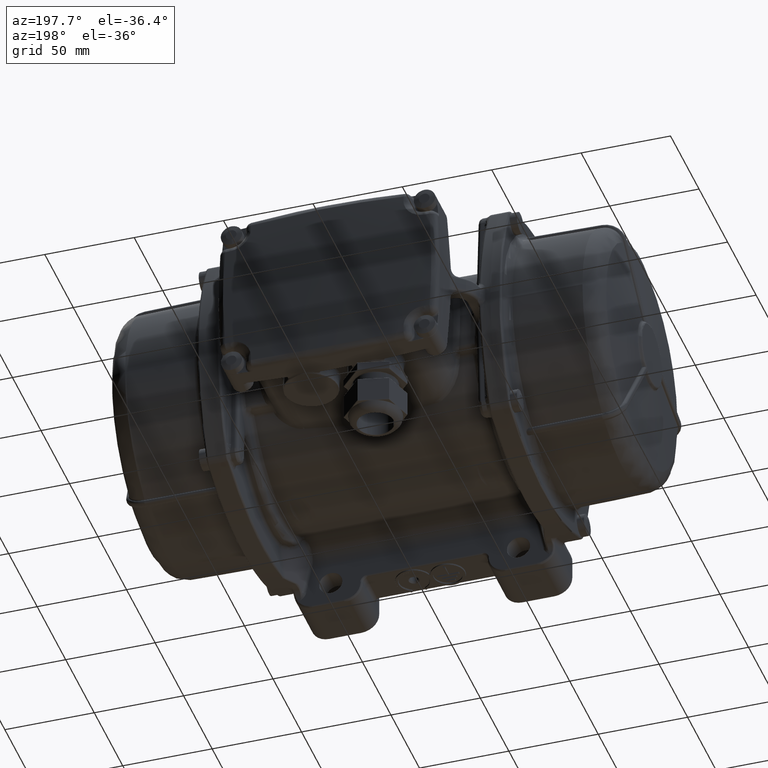
[diagram: clean part render]
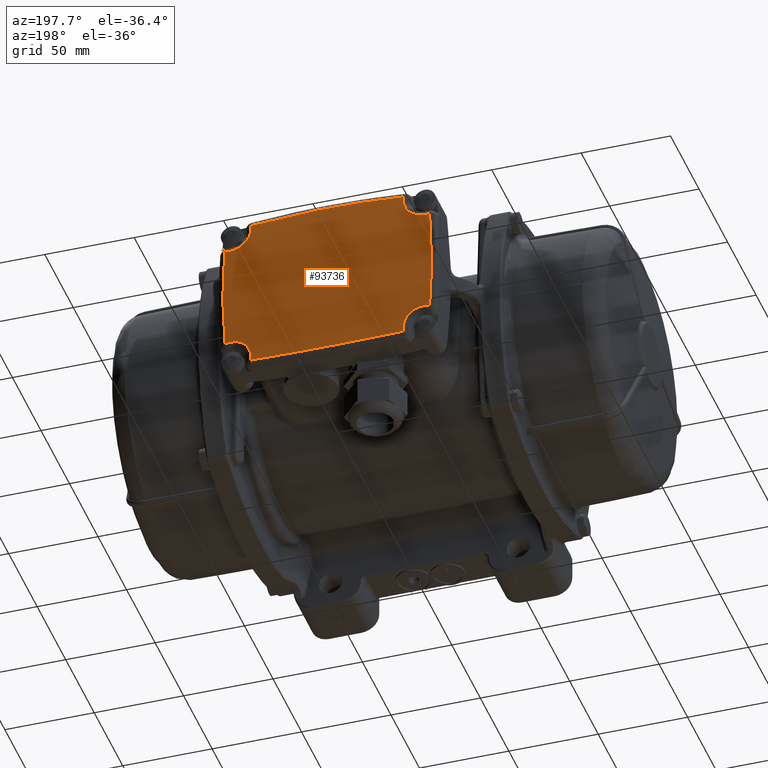
[diagram: same view with one face highlighted and labeled with its STEP entity id]
A machine part, auxiliary view. The second image highlights one B-rep face of the part: STEP entity #93736.
In plain terms, the highlighted face is a freeform B-spline surface patch.
Its self-contained STEP definition (entity closure, byte-faithful):
#80 = CARTESIAN_POINT ( 'NONE',  ( -42.98403389423155829, 118.6258067321905969, 39.06627793614659794 ) ) ;
#602 = DIRECTION ( 'NONE',  ( -1.702154149822475762E-06, -2.864576886308176584E-15, -0.9999999999985514920 ) ) ;
#1042 = EDGE_CURVE ( 'NONE', #13095, #73108, #41013, .T. ) ;
#1982 = CARTESIAN_POINT ( 'NONE',  ( -50.53349356538009829, 118.5556290380669964, -30.73803672313249891 ) ) ;
#2175 = CARTESIAN_POINT ( 'NONE',  ( -14.22988663000949927, 119.3416067317392049, -45.70253701977580363 ) ) ;
#2429 = CARTESIAN_POINT ( 'NONE',  ( -14.22973104393532395, 119.3416067315766043, 45.70274356027114493 ) ) ;
#2609 = CARTESIAN_POINT ( 'NONE',  ( -48.46111806642639408, 118.6383046434615949, -31.65503772199299704 ) ) ;
#2767 = CARTESIAN_POINT ( 'NONE',  ( -58.25880861708890279, 118.6124079098958077, 10.04471448411474022 ) ) ;
#3245 = CARTESIAN_POINT ( 'NONE',  ( 49.46687074393130246, 118.6005273925309922, -31.15967550707790323 ) ) ;
#3872 = CARTESIAN_POINT ( 'NONE',  ( -43.08116479845924829, 118.6378626387677997, -38.67914538473954877 ) ) ;
#4565 = VERTEX_POINT ( 'NONE', #107638 ) ;
#5385 = CARTESIAN_POINT ( 'NONE',  ( -19.71645741781541616, 121.5407909963119266, -15.43026339204122621 ) ) ;
#5737 = CARTESIAN_POINT ( 'NONE',  ( -53.47923232581119635, 118.4057082538515999, 30.13377888783769976 ) ) ;
#6399 = CARTESIAN_POINT ( 'NONE',  ( -57.21508150310280172, 118.1750815051180012, -30.13343237377254979 ) ) ;
#7506 = CARTESIAN_POINT ( 'NONE',  ( 43.08137051223920366, 118.6378626387662081, 38.67930347906465016 ) ) ;
#8148 = CARTESIAN_POINT ( 'NONE',  ( 50.53369927916039472, 118.5556290380667974, 30.73819481741890058 ) ) ;
#8477 = CARTESIAN_POINT ( 'NONE',  ( 57.91190040889564727, 118.4670541394072245, -20.08910526094869908 ) ) ;
#8770 = CARTESIAN_POINT ( 'NONE',  ( 46.62457385992789938, 118.6872946379210134, 32.99210928406744614 ) ) ;
#9670 = CARTESIAN_POINT ( 'NONE',  ( -48.13228630424830357, 118.6480391418785985, 31.87375679089184644 ) ) ;
#9929 = B_SPLINE_CURVE_WITH_KNOTS ( 'NONE', 3,
 ( #75681, #8477, #76967, #86501, #116120, #28262 ),
 .UNSPECIFIED., .F., .F.,
 ( 4, 2, 4 ),
 ( 0.000000000000000000, 0.5000000000000000000, 1.000000000000000000 ),
 .UNSPECIFIED. ) ;
#10193 = CARTESIAN_POINT ( 'NONE',  ( 5.156484298926569611E-05, -779.5000000000000000, -30.13352976274600081 ) ) ;
#10324 = CARTESIAN_POINT ( 'NONE',  ( -45.80509798000800004, 118.7000460570608027, 33.78491550928909248 ) ) ;
#10963 = CARTESIAN_POINT ( 'NONE',  ( -43.85845549052800152, 118.6888201332023982, 36.56536106623310189 ) ) ;
#11585 = CARTESIAN_POINT ( 'NONE',  ( 44.21324058025109593, 118.6981361847695950, -35.90171529220515367 ) ) ;
#12209 = CARTESIAN_POINT ( 'NONE',  ( 52.72588444601809954, 118.4477698657759959, -30.20823366276569644 ) ) ;
#12653 = CARTESIAN_POINT ( 'NONE',  ( -42.68955651159330245, 118.3894073120154076, 44.46247359966250201 ) ) ;
#12829 = CARTESIAN_POINT ( 'NONE',  ( 48.46031736695849901, 118.6373484582305906, -31.67701485882189871 ) ) ;
#13095 = VERTEX_POINT ( 'NONE', #76335 ) ;
#13280 = CARTESIAN_POINT ( 'NONE',  ( 42.68991358882509957, 118.3894073120154076, 44.46232827064304161 ) ) ;
#13456 = CARTESIAN_POINT ( 'NONE',  ( -50.17306025018210391, 118.5714313336250143, -30.86681772345679775 ) ) ;
#13537 = CARTESIAN_POINT ( 'NONE',  ( -42.68970467791000090, 118.4794460255788096, -42.61057433302275399 ) ) ;
#13590 = VERTEX_POINT ( 'NONE', #64697 ) ;
#13903 = CARTESIAN_POINT ( 'NONE',  ( -28.45965837010455601, 119.0250780948174167, 45.29002605431475104 ) ) ;
#14102 = CARTESIAN_POINT ( 'NONE',  ( -42.68970176567960095, 118.5576222908010067, -40.92239675693394929 ) ) ;
#15414 = CARTESIAN_POINT ( 'NONE',  ( -42.68970787504474629, 118.3894073120155923, -44.46217017635794377 ) ) ;
#15845 = CARTESIAN_POINT ( 'NONE',  ( 44.43212017937534597, 118.7001645527493991, 35.57270326234050373 ) ) ;
#16189 = DIRECTION ( 'NONE',  ( -1.702154149822475762E-06, -2.864576886308176584E-15, -0.9999999999985514920 ) ) ;
#16476 = CARTESIAN_POINT ( 'NONE',  ( 51.25874908664609819, 118.5220005565646062, 30.51883947878175007 ) ) ;
#17130 = CARTESIAN_POINT ( 'NONE',  ( 48.46132378019590448, 118.6383046434589943, 31.65519581636665336 ) ) ;
#19580 = ORIENTED_EDGE ( 'NONE', *, *, #71376, .F. ) ;
#19901 = CARTESIAN_POINT ( 'NONE',  ( -49.46666503014469640, 118.6005273925329959, 31.15983360130944746 ) ) ;
#20872 = CARTESIAN_POINT ( 'NONE',  ( 54.24122825459399877, 118.3596935418271983, 30.13359553111284583 ) ) ;
#21155 = CARTESIAN_POINT ( 'NONE',  ( 43.07556747160990085, 118.6372336528510090, -38.70027000755300151 ) ) ;
#21982 = CARTESIAN_POINT ( 'NONE',  ( 42.68976222537370546, 118.3894073120155923, -44.46231550537735444 ) ) ;
#22181 = CARTESIAN_POINT ( 'NONE',  ( -57.21497891900819610, 118.1750815051180012, 30.13378524601274933 ) ) ;
#22389 = CARTESIAN_POINT ( 'NONE',  ( -42.76428327913690453, 118.5878308203785991, 40.17291033408905321 ) ) ;
#22404 = CARTESIAN_POINT ( 'NONE',  ( 45.06830640952789935, 118.7043042625784040, -34.65368725595735100 ) ) ;
#22412 = CARTESIAN_POINT ( 'NONE',  ( -43.71711602399679464, 118.6815046823406021, -36.90748187383115209 ) ) ;
#22624 = EDGE_CURVE ( 'NONE', #4565, #37541, #58060, .T. ) ;
#23323 = CARTESIAN_POINT ( 'NONE',  ( 19.73674732279070909, 119.9563186350737425, 46.25039708003470906 ) ) ;
#24546 = CARTESIAN_POINT ( 'NONE',  ( -19.57242524140409046, 119.9599013974592907, 46.25046399030585320 ) ) ;
#24638 = VERTEX_POINT ( 'NONE', #20872 ) ;
#25471 = DIRECTION ( 'NONE',  ( 0.9999999999985512700, 0.000000000000000000, -1.702154149645035912E-06 ) ) ;
#25830 = CARTESIAN_POINT ( 'NONE',  ( -54.24102254081519447, 118.3596935418519962, -30.13343743607995151 ) ) ;
#27947 = CARTESIAN_POINT ( 'NONE',  ( 43.30158289733485333, 118.6580323326073909, 37.95659914495010412 ) ) ;
#28262 = CARTESIAN_POINT ( 'NONE',  ( 57.21528721688329711, 118.1750815051180012, 30.13359046805840080 ) ) ;
#28464 = CARTESIAN_POINT ( 'NONE',  ( 42.68991199001205672, 118.4351408963356107, 43.53656452791344833 ) ) ;
#29407 = CARTESIAN_POINT ( 'NONE',  ( -42.68956117237735270, 118.5223226997249952, 41.68497729789345385 ) ) ;
#29730 = CARTESIAN_POINT ( 'NONE',  ( 0.0001541489372848535194, -779.5000000000000000, 30.13368785703150010 ) ) ;
#29911 = CIRCLE ( 'NONE', #48217, 899.4965944389208516 ) ;
#30698 = CARTESIAN_POINT ( 'NONE',  ( -44.84150396369945213, 118.7038102580553840, 34.95994703385159852 ) ) ;
#31309 = CIRCLE ( 'NONE', #90703, 899.4965944389158494 ) ;
#31330 = CARTESIAN_POINT ( 'NONE',  ( -45.06810069573590027, 118.7043042625764002, 34.65384535031339652 ) ) ;
#31348 = CARTESIAN_POINT ( 'NONE',  ( -47.21334015879249790, 118.6740870920785937, -32.50925064430379763 ) ) ;
#31973 = CARTESIAN_POINT ( 'NONE',  ( -45.54439515788790516, 118.7037468480541946, -34.04473743261924312 ) ) ;
#32587 = CARTESIAN_POINT ( 'NONE',  ( 45.55120743231070435, 118.7024124340679947, -34.06494218682295383 ) ) ;
#32597 = CARTESIAN_POINT ( 'NONE',  ( -43.42865804067255198, 118.6667535215465961, -37.60214557845775118 ) ) ;
#35369 = ORIENTED_EDGE ( 'NONE', *, *, #47183, .F. ) ;
#35584 = CARTESIAN_POINT ( 'NONE',  ( 52.73025989378960077, 118.4475121089411971, 30.20820475230044977 ) ) ;
#36828 = CARTESIAN_POINT ( 'NONE',  ( 44.23527734892969931, 118.6968614984780146, 35.90067944028110247 ) ) ;
#37541 = VERTEX_POINT ( 'NONE', #37893 ) ;
#37893 = CARTESIAN_POINT ( 'NONE',  ( -42.68970787504474629, 118.3894073120155923, -44.46217017635794377 ) ) ;
#38948 = CARTESIAN_POINT ( 'NONE',  ( -42.68956245300380203, 118.5576207668189994, 40.92273308950679933 ) ) ;
#39605 = CARTESIAN_POINT ( 'NONE',  ( 42.76448899290739547, 118.5878308203756006, -40.17275223988234956 ) ) ;
#40239 = CARTESIAN_POINT ( 'NONE',  ( 51.23783451551189927, 118.5229971604537980, -30.52447479678564690 ) ) ;
#40852 = CARTESIAN_POINT ( 'NONE',  ( 50.16125647380009411, 118.5719386868471901, -30.87155613321720082 ) ) ;
#41013 = B_SPLINE_CURVE_WITH_KNOTS ( 'NONE', 3,
 ( #93218, #72674, #84138, #73912 ),
 .UNSPECIFIED., .F., .F.,
 ( 4, 4 ),
 ( 0.000000000000000000, 1.000000000000000000 ),
 .UNSPECIFIED. ) ;
#41409 = VERTEX_POINT ( 'NONE', #81564 ) ;
#41481 = CARTESIAN_POINT ( 'NONE',  ( 42.68976688615764914, 118.5223226997251942, -41.68481920360810022 ) ) ;
#41645 = CARTESIAN_POINT ( 'NONE',  ( -58.25884281181900093, 118.6124079098937898, -10.04435805847542085 ) ) ;
#41932 = CARTESIAN_POINT ( 'NONE',  ( 54.24112567050100608, 118.3596935418519962, -30.13362208941759590 ) ) ;
#42516 = EDGE_CURVE ( 'NONE', #112001, #4565, #95807, .T. ) ;
#42563 = CARTESIAN_POINT ( 'NONE',  ( 57.21528721688329711, 118.1750815051180012, 30.13359046805840080 ) ) ;
#42823 = CIRCLE ( 'NONE', #49069, 899.4965944389208516 ) ;
#44234 = CARTESIAN_POINT ( 'NONE',  ( -54.24091995672059596, 118.3596935418522094, 30.13378018370275058 ) ) ;
#44297 = CARTESIAN_POINT ( 'NONE',  ( 19.66190944495858162, 121.5419863033480823, -15.43033042009181344 ) ) ;
#45168 = CARTESIAN_POINT ( 'NONE',  ( 47.51953973885080273, 118.6660926424577980, 32.28308057382044893 ) ) ;
#45553 = CARTESIAN_POINT ( 'NONE',  ( 19.73658987233477546, 119.9563186350737425, -46.25030617510446973 ) ) ;
#45816 = VERTEX_POINT ( 'NONE', #55886 ) ;
#46446 = CARTESIAN_POINT ( 'NONE',  ( 43.42886375445584690, 118.6667535215485998, 37.60230367269289786 ) ) ;
#47183 = EDGE_CURVE ( 'NONE', #104480, #41409, #42823, .T. ) ;
#47593 = CARTESIAN_POINT ( 'NONE',  ( 42.68991039180280467, 118.4794460255735942, 42.61073242730769550 ) ) ;
#47710 = CARTESIAN_POINT ( 'NONE',  ( 43.87849868410955878, 118.6875346683560082, 36.56727166178175281 ) ) ;
#47941 = CARTESIAN_POINT ( 'NONE',  ( -42.68955961796095266, 118.4794460255740063, 42.61087775632654484 ) ) ;
#48217 = AXIS2_PLACEMENT_3D ( 'NONE', #10193, #602, #49101 ) ;
#48733 = EDGE_CURVE ( 'NONE', #41409, #95953, #9929, .T. ) ;
#49069 = AXIS2_PLACEMENT_3D ( 'NONE', #103973, #16189, #66684 ) ;
#49101 = DIRECTION ( 'NONE',  ( -0.9999999999985512700, 0.000000000000000000, 1.702154149822473645E-06 ) ) ;
#49203 = CARTESIAN_POINT ( 'NONE',  ( -42.68955806433299927, 118.4351408963370034, 43.53670985693299400 ) ) ;
#49228 = CARTESIAN_POINT ( 'NONE',  ( -43.07536175782715304, 118.6372336528510090, 38.70042810184660453 ) ) ;
#49857 = CARTESIAN_POINT ( 'NONE',  ( -44.21303486646470304, 118.6981361847684013, 35.90187338652820159 ) ) ;
#49868 = ORIENTED_EDGE ( 'NONE', *, *, #92561, .F. ) ;
#50760 = EDGE_CURVE ( 'NONE', #37541, #13095, #122733, .T. ) ;
#51112 = CARTESIAN_POINT ( 'NONE',  ( 43.42417517786604719, 118.6664788321748034, -37.61417173102869782 ) ) ;
#51276 = CARTESIAN_POINT ( 'NONE',  ( -57.21497891900819610, 118.1750815051180012, 30.13378524601274933 ) ) ;
#51720 = B_SPLINE_CURVE_WITH_KNOTS ( 'NONE', 3,
 ( #41481, #90946, #39605, #110236, #21155, #80673, #51112, #98695, #11585, #79412, #22404, #32587, #120500, #99334, #52368, #110849, #12829, #78791, #3245, #40852, #80037, #40239, #90305, #12209, #118610, #60116 ),
 .UNSPECIFIED., .F., .F.,
 ( 4, 2, 2, 2, 2, 2, 2, 2, 2, 2, 2, 2, 4 ),
 ( 0.000000000000000000, 0.1250000000000000000, 0.1875000000000000000, 0.2500000000000000000, 0.3750000000000000000, 0.4375000000000000000, 0.5000000000000000000, 0.6250000000000000000, 0.6875000000000000000, 0.7500000000000000000, 0.8125000000000000000, 0.8750000000000000000, 1.000000000000000000 ),
 .UNSPECIFIED. ) ;
#52368 = CARTESIAN_POINT ( 'NONE',  ( 47.18570697515869483, 118.6758659376955904, -32.50715934865844758 ) ) ;
#52374 = CARTESIAN_POINT ( 'NONE',  ( -43.30137718355410215, 118.6580323326055861, -37.95644105070494589 ) ) ;
#52996 = CARTESIAN_POINT ( 'NONE',  ( -53.47934822394749688, 118.4057074495276112, -30.13343873328625122 ) ) ;
#53073 = CARTESIAN_POINT ( 'NONE',  ( -42.68970308035840588, 118.5223226997260042, -41.68467387458900220 ) ) ;
#53131 = ORIENTED_EDGE ( 'NONE', *, *, #64783, .F. ) ;
#53895 = CARTESIAN_POINT ( 'NONE',  ( -58.79739859484072184, 117.3884181795404373, 46.25053075725712404 ) ) ;
#54792 = CARTESIAN_POINT ( 'NONE',  ( 42.68990879415640194, 118.5223226997249952, 41.68483196887429898 ) ) ;
#55886 = CARTESIAN_POINT ( 'NONE',  ( 42.68990879415640194, 118.5223226997249952, 41.68483196887429898 ) ) ;
#56354 = AXIS2_PLACEMENT_3D ( 'NONE', #67018, #125530, #25471 ) ;
#56687 = CARTESIAN_POINT ( 'NONE',  ( 43.71732173777409969, 118.6815046823387974, 36.90763996816664871 ) ) ;
#58042 = ORIENTED_EDGE ( 'NONE', *, *, #50760, .F. ) ;
#58060 = B_SPLINE_CURVE_WITH_KNOTS ( 'NONE', 3,
 ( #53073, #13537, #111566, #15414 ),
 .UNSPECIFIED., .F., .F.,
 ( 4, 4 ),
 ( 0.000000000000000000, 1.000000000000000000 ),
 .UNSPECIFIED. ) ;
#58856 = CARTESIAN_POINT ( 'NONE',  ( -50.16105076002590124, 118.5719386868450016, 30.87171422755529804 ) ) ;
#60079 = CARTESIAN_POINT ( 'NONE',  ( -42.68955651159330245, 118.3894073120154076, 44.46247359966250201 ) ) ;
#60103 = CARTESIAN_POINT ( 'NONE',  ( -52.72567873224019763, 118.4477698657752143, 30.20839175706550250 ) ) ;
#60116 = CARTESIAN_POINT ( 'NONE',  ( 54.24112567050100608, 118.3596935418519962, -30.13362208941759590 ) ) ;
#60317 = CARTESIAN_POINT ( 'NONE',  ( -42.68970787504474629, 118.3894073120155923, -44.46217017635794377 ) ) ;
#60725 = CARTESIAN_POINT ( 'NONE',  ( -48.46011165318299874, 118.6373484582283879, 31.67717295315720349 ) ) ;
#62291 = FACE_OUTER_BOUND ( 'NONE', #108961, .T. ) ;
#62484 = CARTESIAN_POINT ( 'NONE',  ( 28.46001826479395902, 119.0250780946940097, 45.28992917062185342 ) ) ;
#63574 = CARTESIAN_POINT ( 'NONE',  ( 19.66196197471565910, 121.5419863033480823, 15.43042157943581749 ) ) ;
#64438 = CARTESIAN_POINT ( 'NONE',  ( 42.76463707218450594, 118.5880324920816093, 40.16839482925690419 ) ) ;
#64677 = CARTESIAN_POINT ( 'NONE',  ( 42.68976688615764914, 118.5223226997251942, -41.68481920360810022 ) ) ;
#64689 = VERTEX_POINT ( 'NONE', #120925 ) ;
#64697 = CARTESIAN_POINT ( 'NONE',  ( -42.68956117237735270, 118.5223226997249952, 41.68497729789345385 ) ) ;
#64783 = EDGE_CURVE ( 'NONE', #45816, #107782, #102751, .T. ) ;
#64816 = CARTESIAN_POINT ( 'NONE',  ( 58.96109382784914033, 117.3776852835316902, -46.25037294125666421 ) ) ;
#65698 = CARTESIAN_POINT ( 'NONE',  ( 45.06607000729800205, 118.7057238346082073, 34.62610392243245627 ) ) ;
#66340 = CARTESIAN_POINT ( 'NONE',  ( 51.62436326592680302, 118.5041430365600093, 30.42764098727545274 ) ) ;
#66488 = ORIENTED_EDGE ( 'NONE', *, *, #42516, .F. ) ;
#66684 = DIRECTION ( 'NONE',  ( -0.9999999999985512700, 0.000000000000000000, 1.702154149822473645E-06 ) ) ;
#66960 = CARTESIAN_POINT ( 'NONE',  ( 46.34427293780369439, 118.6924558327434056, 33.24611192639434876 ) ) ;
#67018 = CARTESIAN_POINT ( 'NONE',  ( 0.0001541489375762874971, -779.5000000000000000, 30.13368785703470110 ) ) ;
#67383 = B_SPLINE_CURVE_WITH_KNOTS ( 'NONE', 3,
 ( #51276, #111009, #2767, #41645, #113383, #6399 ),
 .UNSPECIFIED., .F., .F.,
 ( 4, 2, 4 ),
 ( 0.000000000000000000, 0.5000000000000002220, 1.000000000000000000 ),
 .UNSPECIFIED. ) ;
#68490 = CARTESIAN_POINT ( 'NONE',  ( -47.18550126138550382, 118.6758659376921941, 32.50731744303145376 ) ) ;
#69136 = CARTESIAN_POINT ( 'NONE',  ( -43.42396946408499758, 118.6664788321754003, 37.61432982529634472 ) ) ;
#69756 = CARTESIAN_POINT ( 'NONE',  ( -42.68955651159330245, 118.3894073120154076, 44.46247359966250201 ) ) ;
#69758 = CARTESIAN_POINT ( 'NONE',  ( -51.23762880172009915, 118.5229971604551906, 30.52463289104380095 ) ) ;
#69845 = ORIENTED_EDGE ( 'NONE', *, *, #122462, .F. ) ;
#70395 = CARTESIAN_POINT ( 'NONE',  ( -42.68956117237735270, 118.5223226997249952, 41.68497729789345385 ) ) ;
#70412 = CARTESIAN_POINT ( 'NONE',  ( -44.23507163514920393, 118.6968614984796062, -35.90052134595465105 ) ) ;
#70609 = CARTESIAN_POINT ( 'NONE',  ( 14.22993675791233947, 119.3416067314152116, -45.70258546916790010 ) ) ;
#71040 = CARTESIAN_POINT ( 'NONE',  ( -43.87829297032939735, 118.6875346683542034, -36.56711356753704933 ) ) ;
#71376 = EDGE_CURVE ( 'NONE', #13590, #115165, #91314, .T. ) ;
#72015 = B_SPLINE_CURVE_WITH_KNOTS ( 'NONE', 3,
 ( #115814, #85556, #35584, #66340, #16476, #8148, #76644, #96518, #17130, #45168, #86188, #8770, #66960, #124846, #65698, #15845, #36828, #47710, #56687, #46446, #27947, #7506, #76001, #64438, #86837, #54792 ),
 .UNSPECIFIED., .F., .F.,
 ( 4, 2, 2, 2, 2, 2, 2, 2, 2, 2, 2, 2, 4 ),
 ( 0.000000000000000000, 0.1250000000000000000, 0.1875000000000000000, 0.2500000000000000000, 0.3750000000000000000, 0.4375000000000000000, 0.5000000000000000000, 0.6250000000000000000, 0.6875000000000000000, 0.7500000000000000000, 0.8125000000000000000, 0.8750000000000000000, 1.000000000000000000 ),
 .UNSPECIFIED. ) ;
#72314 = CARTESIAN_POINT ( 'NONE',  ( -42.98792998614710115, 118.6263546460189957, -39.04923437436855238 ) ) ;
#72581 = CARTESIAN_POINT ( 'NONE',  ( -19.71640488805831737, 121.5407909963119266, 15.43048860748640116 ) ) ;
#72674 = CARTESIAN_POINT ( 'NONE',  ( 42.68976377811040379, 118.4351408963374013, -43.53655176264795301 ) ) ;
#72702 = EDGE_CURVE ( 'NONE', #64689, #112001, #29911, .T. ) ;
#73108 = VERTEX_POINT ( 'NONE', #64677 ) ;
#73218 = VERTEX_POINT ( 'NONE', #69756 ) ;
#73912 = CARTESIAN_POINT ( 'NONE',  ( 42.68976688615764914, 118.5223226997251942, -41.68481920360810022 ) ) ;
#75680 = ORIENTED_EDGE ( 'NONE', *, *, #22624, .F. ) ;
#75681 = CARTESIAN_POINT ( 'NONE',  ( 57.21518463278870570, 118.1750815051180012, -30.13362715172549855 ) ) ;
#75741 = CARTESIAN_POINT ( 'NONE',  ( -58.79755604529660218, 117.3884181795404373, -46.25017249788211160 ) ) ;
#75892 = CARTESIAN_POINT ( 'NONE',  ( 42.68991358882509957, 118.3894073120154076, 44.46232827064304161 ) ) ;
#76001 = CARTESIAN_POINT ( 'NONE',  ( 42.98813569992554307, 118.6263546460187968, 39.04939246866494784 ) ) ;
#76335 = CARTESIAN_POINT ( 'NONE',  ( 42.68976222537370546, 118.3894073120155923, -44.46231550537735444 ) ) ;
#76644 = CARTESIAN_POINT ( 'NONE',  ( 50.17326596396650018, 118.5714313336257959, 30.86697581770514986 ) ) ;
#76967 = CARTESIAN_POINT ( 'NONE',  ( 58.25901433087395276, 118.6124079098956230, -10.04455638982950028 ) ) ;
#77345 = VERTEX_POINT ( 'NONE', #22181 ) ;
#78138 = CARTESIAN_POINT ( 'NONE',  ( -45.55100171854170554, 118.7024124340701974, 34.06510028103775056 ) ) ;
#78791 = CARTESIAN_POINT ( 'NONE',  ( 49.12664002142790309, 118.6136166801240108, -31.32066295150174540 ) ) ;
#79412 = CARTESIAN_POINT ( 'NONE',  ( 44.84170967747714798, 118.7038102580550003, -34.95978893958569955 ) ) ;
#80037 = CARTESIAN_POINT ( 'NONE',  ( 50.51541154291530944, 118.5564392588143932, -30.74442435390490047 ) ) ;
#80043 = CARTESIAN_POINT ( 'NONE',  ( -54.24102254081519447, 118.3596935418519962, -30.13343743607995151 ) ) ;
#80673 = CARTESIAN_POINT ( 'NONE',  ( 43.29523114204069856, 118.6575661857901878, -37.97476840746669779 ) ) ;
#80679 = CARTESIAN_POINT ( 'NONE',  ( -46.34406722403049628, 118.6924558327390002, -33.24595383222134615 ) ) ;
#81022 = ORIENTED_EDGE ( 'NONE', *, *, #94749, .F. ) ;
#81300 = CARTESIAN_POINT ( 'NONE',  ( -46.62436814614540026, 118.6872946379260014, -32.99195118964955498 ) ) ;
#81564 = CARTESIAN_POINT ( 'NONE',  ( 57.21518463278870570, 118.1750815051180012, -30.13362715172549855 ) ) ;
#81923 = CARTESIAN_POINT ( 'NONE',  ( -52.73005418001950062, 118.4475121089381986, -30.20804665809044920 ) ) ;
#82559 = CARTESIAN_POINT ( 'NONE',  ( -51.25854337286570228, 118.5220005565646062, -30.51868138449799872 ) ) ;
#84113 =( BOUNDED_SURFACE ( )  B_SPLINE_SURFACE ( 3, 3, ( 
 ( #53895, #24546, #23323, #93129 ),
 ( #120146, #72581, #63574, #102767 ),
 ( #111748, #5385, #44297, #122680 ),
 ( #75741, #125233, #45553, #64816 ) ),
 .UNSPECIFIED., .F., .F., .F. ) 
 B_SPLINE_SURFACE_WITH_KNOTS ( ( 4, 4 ),
 ( 4, 4 ),
 ( 0.4871136094752260282, 0.5128863905247750266 ),
 ( 0.000000000000000000, 1.000000000000000000 ),
 .UNSPECIFIED. ) 
 GEOMETRIC_REPRESENTATION_ITEM ( )  RATIONAL_B_SPLINE_SURFACE ( (
 ( 0.5015191598161620190, 0.5008010030315379613, 0.5008010030315379613, 0.5015191598161620190),
 ( 0.5010773876544070138, 0.5003598634710889614, 0.5003598634710889614, 0.5010773876544070138),
 ( 0.5010773876544070138, 0.5003598634710889614, 0.5003598634710889614, 0.5010773876544070138),
 ( 0.5015191598161620190, 0.5008010030315379613, 0.5008010030315379613, 0.5015191598161620190) ) ) 
 REPRESENTATION_ITEM ( '' )  SURFACE ( )  );
#84138 = CARTESIAN_POINT ( 'NONE',  ( 42.68976533176749655, 118.4794460255729973, -42.61071966204194439 ) ) ;
#85556 = CARTESIAN_POINT ( 'NONE',  ( 53.47955393773550270, 118.4057074495252095, 30.13359682762734693 ) ) ;
#86188 = CARTESIAN_POINT ( 'NONE',  ( 47.21354587257059876, 118.6740870920837949, 32.50940873845654977 ) ) ;
#86501 = CARTESIAN_POINT ( 'NONE',  ( 58.25904852559504832, 118.6124079098940172, 10.04451615276068033 ) ) ;
#86837 = CARTESIAN_POINT ( 'NONE',  ( 42.68990747957809617, 118.5576222907945976, 40.92255485123534697 ) ) ;
#90305 = CARTESIAN_POINT ( 'NONE',  ( 51.60781372233199704, 118.5049652312430055, -30.43135254867525319 ) ) ;
#90703 = AXIS2_PLACEMENT_3D ( 'NONE', #29730, #119502, #109873 ) ;
#90946 = CARTESIAN_POINT ( 'NONE',  ( 42.68976816680624609, 118.5576207668210031, -40.92257499516250618 ) ) ;
#91300 = ORIENTED_EDGE ( 'NONE', *, *, #95941, .F. ) ;
#91314 = B_SPLINE_CURVE_WITH_KNOTS ( 'NONE', 3,
 ( #70395, #38948, #22389, #80, #49228, #118598, #69136, #10963, #49857, #30698, #31330, #78138, #10324, #117313, #68490, #9670, #60725, #99962, #19901, #58856, #98051, #69758, #108958, #60103, #5737, #92838 ),
 .UNSPECIFIED., .F., .F.,
 ( 4, 2, 2, 2, 2, 2, 2, 2, 2, 2, 2, 2, 4 ),
 ( 0.000000000000000000, 0.1250000000000000000, 0.1875000000000000000, 0.2500000000000000000, 0.3750000000000000000, 0.4375000000000000000, 0.5000000000000000000, 0.6250000000000000000, 0.6875000000000000000, 0.7500000000000000000, 0.8125000000000000000, 0.8750000000000000000, 1.000000000000000000 ),
 .UNSPECIFIED. ) ;
#92229 = CARTESIAN_POINT ( 'NONE',  ( -42.68970308035840588, 118.5223226997260042, -41.68467387458900220 ) ) ;
#92561 = EDGE_CURVE ( 'NONE', #115165, #77345, #31309, .T. ) ;
#92838 = CARTESIAN_POINT ( 'NONE',  ( -54.24091995672059596, 118.3596935418522094, 30.13378018370275058 ) ) ;
#93129 = CARTESIAN_POINT ( 'NONE',  ( 58.96125127830513435, 117.3776852835316902, 46.25033031388255722 ) ) ;
#93218 = CARTESIAN_POINT ( 'NONE',  ( 42.68976222537370546, 118.3894073120155923, -44.46231550537735444 ) ) ;
#93736 = ADVANCED_FACE ( 'NONE', ( #62291 ), #84113, .F. ) ;
#94749 = EDGE_CURVE ( 'NONE', #73218, #13590, #115971, .T. ) ;
#95293 = ORIENTED_EDGE ( 'NONE', *, *, #102697, .F. ) ;
#95807 = B_SPLINE_CURVE_WITH_KNOTS ( 'NONE', 3,
 ( #80043, #52996, #81923, #119235, #82559, #1982, #13456, #111493, #2609, #121156, #31348, #81300, #80679, #31973, #112122, #120507, #70412, #71040, #22412, #32597, #52374, #3872, #72314, #101880, #14102, #92229 ),
 .UNSPECIFIED., .F., .F.,
 ( 4, 2, 2, 2, 2, 2, 2, 2, 2, 2, 2, 2, 4 ),
 ( 0.000000000000000000, 0.1250000000000000000, 0.1875000000000000000, 0.2500000000000000000, 0.3750000000000000000, 0.4375000000000000000, 0.5000000000000000000, 0.6250000000000000000, 0.6875000000000000000, 0.7500000000000000000, 0.8125000000000000000, 0.8750000000000000000, 1.000000000000000000 ),
 .UNSPECIFIED. ) ;
#95941 = EDGE_CURVE ( 'NONE', #107782, #73218, #107992, .T. ) ;
#95953 = VERTEX_POINT ( 'NONE', #42563 ) ;
#96518 = CARTESIAN_POINT ( 'NONE',  ( 49.12465005425190157, 118.6146551928899981, 31.30097851598580405 ) ) ;
#98051 = CARTESIAN_POINT ( 'NONE',  ( -50.51520582914630353, 118.5564392588130005, 30.74458244821675024 ) ) ;
#98695 = CARTESIAN_POINT ( 'NONE',  ( 43.85866120430700477, 118.6888201332039898, -36.56520297191330826 ) ) ;
#99334 = CARTESIAN_POINT ( 'NONE',  ( 46.60434914192779843, 118.6888178023509965, -32.98544184854949890 ) ) ;
#99542 = CARTESIAN_POINT ( 'NONE',  ( -28.45981255117075293, 119.0250780942994027, -45.28977108417790021 ) ) ;
#99962 = CARTESIAN_POINT ( 'NONE',  ( -49.12643430764260444, 118.6136166801260003, 31.32082104573649772 ) ) ;
#101277 = ORIENTED_EDGE ( 'NONE', *, *, #48733, .F. ) ;
#101880 = CARTESIAN_POINT ( 'NONE',  ( -42.76443135840025178, 118.5880324920806004, -40.16823673499359870 ) ) ;
#102697 = EDGE_CURVE ( 'NONE', #77345, #64689, #67383, .T. ) ;
#102751 = B_SPLINE_CURVE_WITH_KNOTS ( 'NONE', 3,
 ( #126015, #47593, #28464, #75892 ),
 .UNSPECIFIED., .F., .F.,
 ( 4, 4 ),
 ( 0.000000000000000000, 1.000000000000000000 ),
 .UNSPECIFIED. ) ;
#102767 = CARTESIAN_POINT ( 'NONE',  ( 58.95582460423791815, 118.9635879903967464, 15.43035469522450676 ) ) ;
#102955 = ORIENTED_EDGE ( 'NONE', *, *, #117140, .F. ) ;
#103973 = CARTESIAN_POINT ( 'NONE',  ( 5.156484298926569611E-05, -779.5000000000000000, -30.13352976274600081 ) ) ;
#104480 = VERTEX_POINT ( 'NONE', #41932 ) ;
#107638 = CARTESIAN_POINT ( 'NONE',  ( -42.68970308035840588, 118.5223226997260042, -41.68467387458900220 ) ) ;
#107782 = VERTEX_POINT ( 'NONE', #112614 ) ;
#107992 = B_SPLINE_CURVE_WITH_KNOTS ( 'NONE', 3,
 ( #13280, #62484, #110058, #2429, #13903, #12653 ),
 .UNSPECIFIED., .F., .F.,
 ( 4, 2, 4 ),
 ( 0.000000000000000000, 0.5000000000000000000, 1.000000000000000000 ),
 .UNSPECIFIED. ) ;
#108958 = CARTESIAN_POINT ( 'NONE',  ( -51.60760800855040031, 118.5049652312432045, 30.43151064295379982 ) ) ;
#108961 = EDGE_LOOP ( 'NONE', ( #101277, #35369, #117825, #122969, #58042, #75680, #66488, #122413, #95293, #49868, #19580, #81022, #91300, #53131, #102955, #69845 ) ) ;
#109814 = CARTESIAN_POINT ( 'NONE',  ( 28.45986408426654890, 119.0250780944491993, -45.28986796711740226 ) ) ;
#109873 = DIRECTION ( 'NONE',  ( 0.9999999999985512700, 0.000000000000000000, -1.702154149822483174E-06 ) ) ;
#110058 = CARTESIAN_POINT ( 'NONE',  ( 14.23009234359334307, 119.3416067315777980, 45.70269511724224998 ) ) ;
#110236 = CARTESIAN_POINT ( 'NONE',  ( 42.98423960801689958, 118.6258067321920038, -39.06611984182195130 ) ) ;
#110849 = CARTESIAN_POINT ( 'NONE',  ( 48.13249201803240140, 118.6480391418770068, -31.87359869665074541 ) ) ;
#111009 = CARTESIAN_POINT ( 'NONE',  ( -57.91169469645170409, 118.4670541393183925, 20.08926335532409979 ) ) ;
#111493 = CARTESIAN_POINT ( 'NONE',  ( -49.12444434047989716, 118.6146551928919877, -31.30082042162749545 ) ) ;
#111566 = CARTESIAN_POINT ( 'NONE',  ( -42.68970627629209247, 118.4351408963329959, -43.53640643362844287 ) ) ;
#111748 = CARTESIAN_POINT ( 'NONE',  ( -59.01016344341625341, 118.9600072041938574, -15.43019650809646315 ) ) ;
#112001 = VERTEX_POINT ( 'NONE', #25830 ) ;
#112122 = CARTESIAN_POINT ( 'NONE',  ( -45.06586429350259948, 118.7057238346059904, -34.62594582822215017 ) ) ;
#112614 = CARTESIAN_POINT ( 'NONE',  ( 42.68991358882509957, 118.3894073120154076, 44.46232827064304161 ) ) ;
#113383 = CARTESIAN_POINT ( 'NONE',  ( -57.91176308663159489, 118.4670541392701892, -20.08890811136059895 ) ) ;
#115165 = VERTEX_POINT ( 'NONE', #44234 ) ;
#115814 = CARTESIAN_POINT ( 'NONE',  ( 54.24122825459399877, 118.3596935418271983, 30.13359553111284583 ) ) ;
#115971 = B_SPLINE_CURVE_WITH_KNOTS ( 'NONE', 3,
 ( #60079, #49203, #47941, #29407 ),
 .UNSPECIFIED., .F., .F.,
 ( 4, 4 ),
 ( 0.000000000000000000, 1.000000000000000000 ),
 .UNSPECIFIED. ) ;
#116120 = CARTESIAN_POINT ( 'NONE',  ( 57.91196879891294458, 118.4670541393696226, 20.08906620554444800 ) ) ;
#117140 = EDGE_CURVE ( 'NONE', #24638, #45816, #72015, .T. ) ;
#117313 = CARTESIAN_POINT ( 'NONE',  ( -46.60414342814949862, 118.6888178023499876, 32.98559994285974994 ) ) ;
#117825 = ORIENTED_EDGE ( 'NONE', *, *, #119822, .F. ) ;
#118598 = CARTESIAN_POINT ( 'NONE',  ( -43.29502542826259770, 118.6575661857905999, 37.97492650174375228 ) ) ;
#118610 = CARTESIAN_POINT ( 'NONE',  ( 53.47943803959309861, 118.4057082538463987, -30.13362079370750024 ) ) ;
#119235 = CARTESIAN_POINT ( 'NONE',  ( -51.62415755214139779, 118.5041430365616009, -30.42748289295254693 ) ) ;
#119502 = DIRECTION ( 'NONE',  ( 1.702154149822485927E-06, -2.520638407049376386E-15, 0.9999999999985514920 ) ) ;
#119822 = EDGE_CURVE ( 'NONE', #73108, #104480, #51720, .T. ) ;
#120146 = CARTESIAN_POINT ( 'NONE',  ( -59.01011091365916883, 118.9600072041938574, 15.43055549143119798 ) ) ;
#120500 = CARTESIAN_POINT ( 'NONE',  ( 45.80530369378939781, 118.7000460570602058, -33.78475741501625151 ) ) ;
#120507 = CARTESIAN_POINT ( 'NONE',  ( -44.43191446560250313, 118.7001645527503939, -35.57254516801749844 ) ) ;
#120925 = CARTESIAN_POINT ( 'NONE',  ( -57.21508150310280172, 118.1750815051180012, -30.13343237377254979 ) ) ;
#121156 = CARTESIAN_POINT ( 'NONE',  ( -47.51933402506499959, 118.6660926424563911, -32.28292247957934791 ) ) ;
#122413 = ORIENTED_EDGE ( 'NONE', *, *, #72702, .F. ) ;
#122462 = EDGE_CURVE ( 'NONE', #95953, #24638, #124084, .T. ) ;
#122680 = CARTESIAN_POINT ( 'NONE',  ( 58.95577207448094015, 118.9635879903967464, -15.43039730430315437 ) ) ;
#122733 = B_SPLINE_CURVE_WITH_KNOTS ( 'NONE', 3,
 ( #60317, #99542, #2175, #70609, #109814, #21982 ),
 .UNSPECIFIED., .F., .F.,
 ( 4, 2, 4 ),
 ( 0.000000000000000000, 0.5000000000000002220, 1.000000000000000000 ),
 .UNSPECIFIED. ) ;
#122969 = ORIENTED_EDGE ( 'NONE', *, *, #1042, .F. ) ;
#124084 = CIRCLE ( 'NONE', #56354, 899.4965944389268770 ) ;
#124846 = CARTESIAN_POINT ( 'NONE',  ( 45.54460087168259719, 118.7037468480450002, 34.04489552712954747 ) ) ;
#125233 = CARTESIAN_POINT ( 'NONE',  ( -19.57258269186000632, 119.9599013974592907, -46.25023926483321901 ) ) ;
#125530 = DIRECTION ( 'NONE',  ( 1.702154149645035912E-06, 1.719732890324630722E-16, 0.9999999999985514920 ) ) ;
#126015 = CARTESIAN_POINT ( 'NONE',  ( 42.68990879415640194, 118.5223226997249952, 41.68483196887429898 ) ) ;